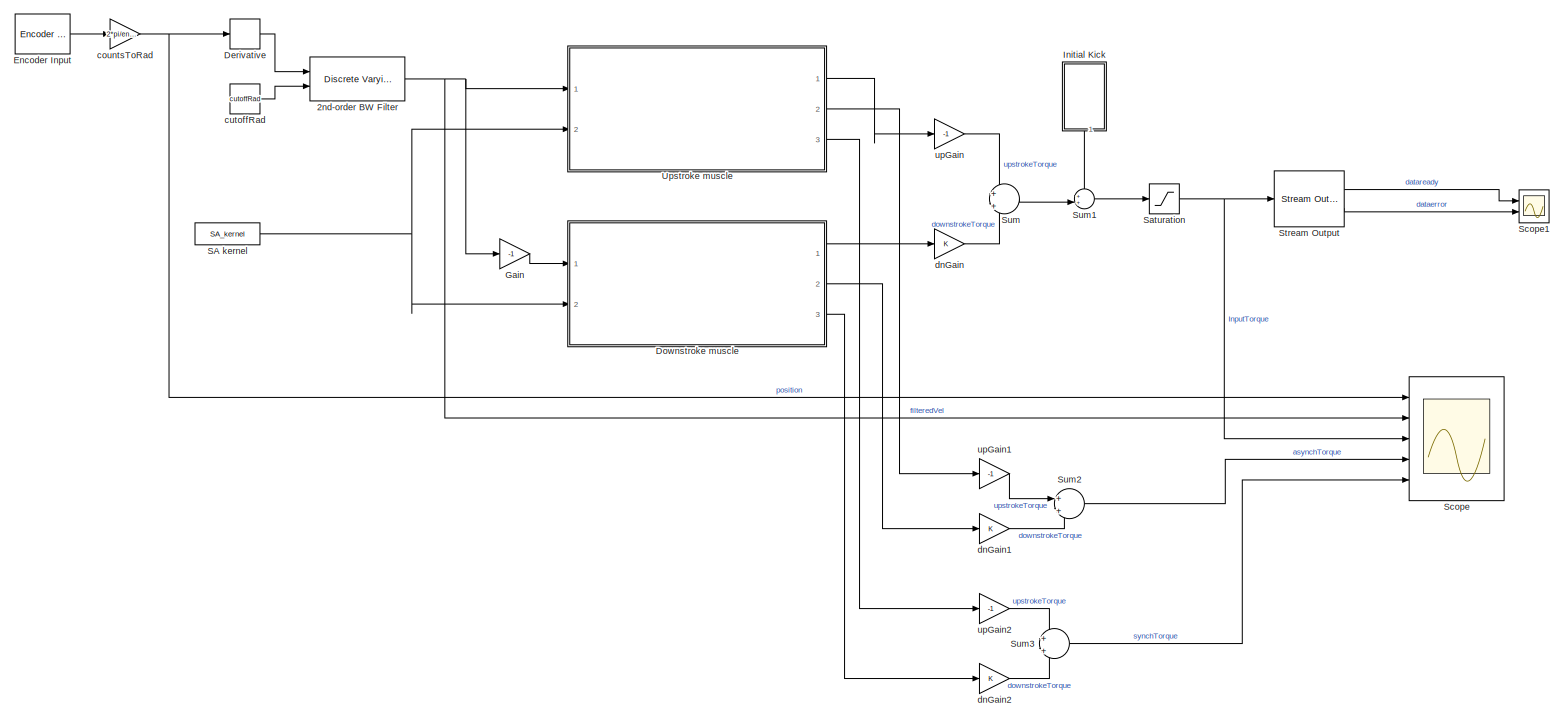
[diagram: root canvas - part 1/1, most of the canvas]
MODEL slx_b208cc082958
KIND model
CONFIG AbsTol = auto
CONFIG EnableMultiTasking = off
CONFIG FixedStep = sampTime
CONFIG MaxStep = auto
CONFIG MinStep = auto
CONFIG RelTol = 1e-3
CONFIG SampleTimeConstraint = Unconstrained
CONFIG Solver = ode5
CONFIG SolverName = ode5
CONFIG StartTime = 0.0
CONFIG StopTime = 30
BLOCK [Reference] 2nd-order BW Filter  REF=cstblocks/Linear Parameter Varying/Discrete Varying Lowpass
  Ports = [2, 1]
  SourceBlock = cstblocks/Linear Parameter Varying/Discrete Varying Lowpass
  SourceProductBaseCode = CT
  SourceType = Discrete Varying Lowpass
BLOCK [Derivative] Derivative
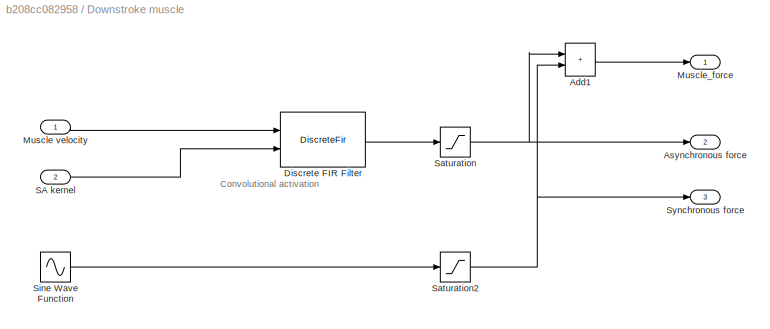
BLOCK [SubSystem] Downstroke muscle
  NameLocation = top
  Ports = [2, 3]
  RequestExecContextInheritance = off
BLOCK [Sum] Downstroke muscle/Add1
  IconShape = rectangular
  Ports = [2, 1]
BLOCK [Outport] Downstroke muscle/Asynchronous force
  Port = 2
BLOCK [DiscreteFir] Downstroke muscle/Discrete FIR Filter
  CoefSource = Input port
  Coefficients = [0, 0, 2]
  InputPortMap = u0,u1
  InputProcessing = Columns as channels (frame based)
  OutputPortMap = o0
  Ports = [2, 1]
BLOCK [Inport] Downstroke muscle/Muscle velocity
BLOCK [Outport] Downstroke muscle/Muscle_force
BLOCK [Inport] Downstroke muscle/SA kernel
  Port = 2
BLOCK [Saturate] Downstroke muscle/Saturation
  LowerLimit = 0
  UpperLimit = Inf
BLOCK [Saturate] Downstroke muscle/Saturation2
  LowerLimit = 0
  UpperLimit = Inf
BLOCK [Sin] Downstroke muscle/Sine Wave Function
  Amplitude = synch_gain
  Frequency = synch_w
  Phase = pi
  Ports = [0, 1]
  SampleTime = 0
BLOCK [Outport] Downstroke muscle/Synchronous force
  Port = 3
BLOCK [Reference] Encoder Input  REF=sldrtlib/Encoder Input
  AttributesFormatString = National Instruments\nPCIe-6323 [auto]
  Ports = [0, 1]
  SourceBlock = sldrtlib/Encoder Input
  SourceProductBaseCode = WT
  SourceType = Simulink Desktop Real-Time Encoder Input
BLOCK [Gain] Gain
  Gain = -1
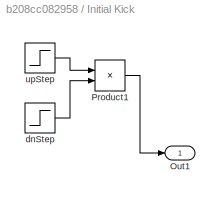
BLOCK [SubSystem] Initial Kick
  NameLocation = top
  Ports = [0, 1]
  RequestExecContextInheritance = off
BLOCK [Outport] Initial Kick/Out1
BLOCK [Product] Initial Kick/Product1
  Ports = [2, 1]
BLOCK [Step] Initial Kick/dnStep
  After = 0
  Before = 1
  SampleTime = 0
  Time = imp_start+imp_dur
BLOCK [Step] Initial Kick/upStep
  After = imp_mag
  SampleTime = 0
  Time = imp_start
BLOCK [Constant] SA kernel
  Value = SA_kernel
BLOCK [Saturate] Saturation
  LowerLimit = -4
  UpperLimit = 4
BLOCK [Scope] Scope
  Floating = off
  NumInputPorts = 5
  Ports = [5]
  ScopeSpecificationString = Simulink.scopes.TimeScopeBlockCfg('CurrentConfiguration', extmgr.ConfigurationSet(extmgr.Configuration('Core','General UI',true),extmgr.Configuration('Core','Source UI',true),extmgr.Configuration('Sources','WiredSimulink',true,'DataLogging',true,'DataLoggingLimitDataPoints',true,'DataLoggingMaxPoints','500000','DataLoggingSaveFormat','StructureWithTime'),extmgr.Configuration('Visuals','Time Domain...<+4978ch>
BLOCK [Scope] Scope1
  Floating = off
  NumInputPorts = 2
  Ports = [2]
  ScopeSpecificationString = Simulink.scopes.TimeScopeBlockCfg('CurrentConfiguration', extmgr.ConfigurationSet(extmgr.Configuration('Core','General UI',true),extmgr.Configuration('Core','Source UI',true),extmgr.Configuration('Sources','WiredSimulink',true,'DataLoggingVariableName','ScopeData1'),extmgr.Configuration('Visuals','Time Domain',true,'SerializedDisplays',{struct('MinYLimReal','0.9','MaxYLimReal','1.1','YLabelReal','...<+1376ch>
BLOCK [Reference] Stream Output  REF=sldrtlib/Stream Output
  AttributesFormatString = Serial Port [5]
  Ports = [1, 2]
  SourceBlock = sldrtlib/Stream Output
  SourceProductBaseCode = WT
  SourceType = Simulink Desktop Real-Time Stream Output
BLOCK [Sum] Sum
  Inputs = +|+
  Ports = [2, 1]
BLOCK [Sum] Sum1
  Inputs = ++|
  Ports = [2, 1]
BLOCK [Sum] Sum2
  Inputs = +|+
  Ports = [2, 1]
BLOCK [Sum] Sum3
  Inputs = +|+
  Ports = [2, 1]
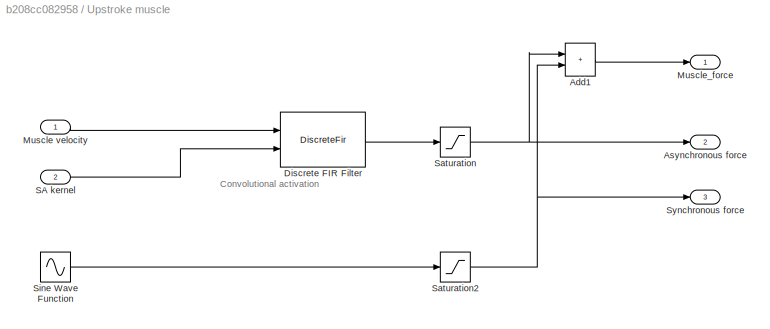
BLOCK [SubSystem] Upstroke muscle
  NameLocation = top
  Ports = [2, 3]
  RequestExecContextInheritance = off
BLOCK [Sum] Upstroke muscle/Add1
  IconShape = rectangular
  Ports = [2, 1]
BLOCK [Outport] Upstroke muscle/Asynchronous force
  Port = 2
BLOCK [DiscreteFir] Upstroke muscle/Discrete FIR Filter
  CoefSource = Input port
  Coefficients = [0, 0, 2]
  InputPortMap = u0,u1
  InputProcessing = Columns as channels (frame based)
  OutputPortMap = o0
  Ports = [2, 1]
BLOCK [Inport] Upstroke muscle/Muscle velocity
BLOCK [Outport] Upstroke muscle/Muscle_force
BLOCK [Inport] Upstroke muscle/SA kernel
  Port = 2
BLOCK [Saturate] Upstroke muscle/Saturation
  LowerLimit = 0
  UpperLimit = Inf
BLOCK [Saturate] Upstroke muscle/Saturation2
  LowerLimit = 0
  UpperLimit = Inf
BLOCK [Sin] Upstroke muscle/Sine Wave Function
  Amplitude = synch_gain
  Frequency = synch_w
  Ports = [0, 1]
  SampleTime = 0
BLOCK [Outport] Upstroke muscle/Synchronous force
  Port = 3
BLOCK [Gain] countsToRad
  Gain = 2*pi/encCPR
BLOCK [Constant] cutoffRad
  Value = cutoffRad
BLOCK [Gain] dnGain
BLOCK [Gain] dnGain1
BLOCK [Gain] dnGain2
BLOCK [Gain] upGain
  Gain = -1
BLOCK [Gain] upGain1
  Gain = -1
BLOCK [Gain] upGain2
  Gain = -1
ANNOTATION Downstroke muscle: Convolutional activation
ANNOTATION Upstroke muscle: Convolutional activation
NET 2nd-order BW Filter:1 -> Gain:1, Scope:2, Upstroke muscle:1
LINE Derivative:1 -> 2nd-order BW Filter:1
LINE Downstroke muscle/Add1:1 -> Downstroke muscle/Muscle_force:1
LINE Downstroke muscle/Discrete FIR Filter:1 -> Downstroke muscle/Saturation:1
LINE Downstroke muscle/Muscle velocity:1 -> Downstroke muscle/Discrete FIR Filter:1
LINE Downstroke muscle/SA kernel:1 -> Downstroke muscle/Discrete FIR Filter:2
NET Downstroke muscle/Saturation2:1 -> Downstroke muscle/Add1:2, Downstroke muscle/Synchronous force:1
NET Downstroke muscle/Saturation:1 -> Downstroke muscle/Add1:1, Downstroke muscle/Asynchronous force:1
LINE Downstroke muscle/Sine Wave Function:1 -> Downstroke muscle/Saturation2:1
LINE Downstroke muscle:1 -> dnGain:1
LINE Downstroke muscle:2 -> dnGain1:1
LINE Downstroke muscle:3 -> dnGain2:1
LINE Encoder Input:1 -> countsToRad:1
LINE Gain:1 -> Downstroke muscle:1
LINE Initial Kick/Product1:1 -> Initial Kick/Out1:1
LINE Initial Kick/dnStep:1 -> Initial Kick/Product1:2
LINE Initial Kick/upStep:1 -> Initial Kick/Product1:1
LINE Initial Kick:1 -> Sum1:1
NET SA kernel:1 -> Downstroke muscle:2, Upstroke muscle:2
NET Saturation:1 -> Scope:3, Stream Output:1
LINE Stream Output:1 -> Scope1:1
LINE Stream Output:2 -> Scope1:2
LINE Sum1:1 -> Saturation:1
LINE Sum2:1 -> Scope:4
LINE Sum3:1 -> Scope:5
LINE Sum:1 -> Sum1:2
LINE Upstroke muscle/Add1:1 -> Upstroke muscle/Muscle_force:1
LINE Upstroke muscle/Discrete FIR Filter:1 -> Upstroke muscle/Saturation:1
LINE Upstroke muscle/Muscle velocity:1 -> Upstroke muscle/Discrete FIR Filter:1
LINE Upstroke muscle/SA kernel:1 -> Upstroke muscle/Discrete FIR Filter:2
NET Upstroke muscle/Saturation2:1 -> Upstroke muscle/Add1:2, Upstroke muscle/Synchronous force:1
NET Upstroke muscle/Saturation:1 -> Upstroke muscle/Add1:1, Upstroke muscle/Asynchronous force:1
LINE Upstroke muscle/Sine Wave Function:1 -> Upstroke muscle/Saturation2:1
LINE Upstroke muscle:1 -> upGain:1
LINE Upstroke muscle:2 -> upGain1:1
LINE Upstroke muscle:3 -> upGain2:1
NET countsToRad:1 -> Derivative:1, Scope:1
LINE cutoffRad:1 -> 2nd-order BW Filter:2
LINE dnGain1:1 -> Sum2:2
LINE dnGain2:1 -> Sum3:2
LINE dnGain:1 -> Sum:2
LINE upGain1:1 -> Sum2:1
LINE upGain2:1 -> Sum3:1
LINE upGain:1 -> Sum:1
note: NET lines group one-source signal fan-out (src -> all destinations, sorted); 1:1 wires keep LINE
